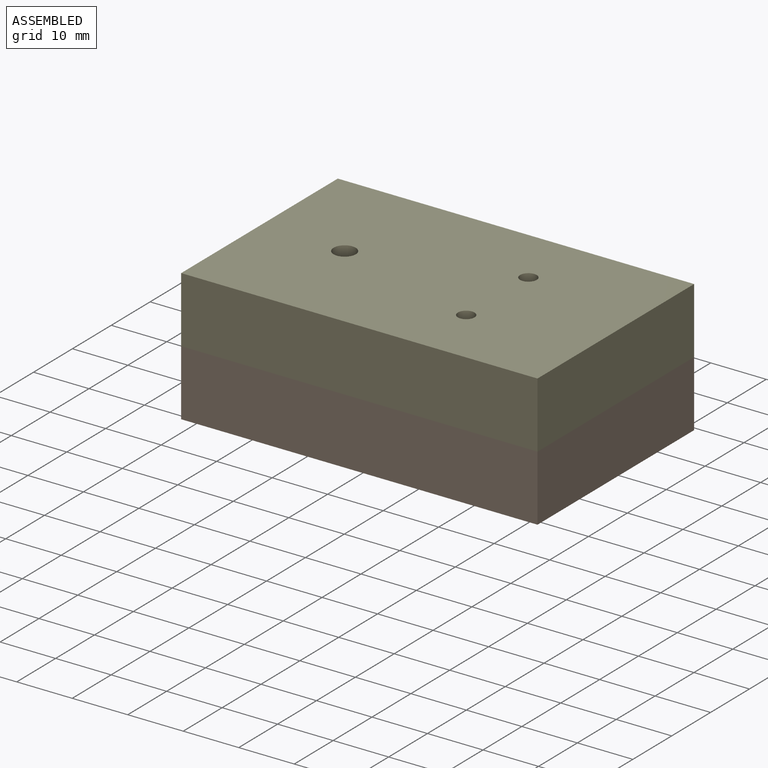
[diagram: assembled view]
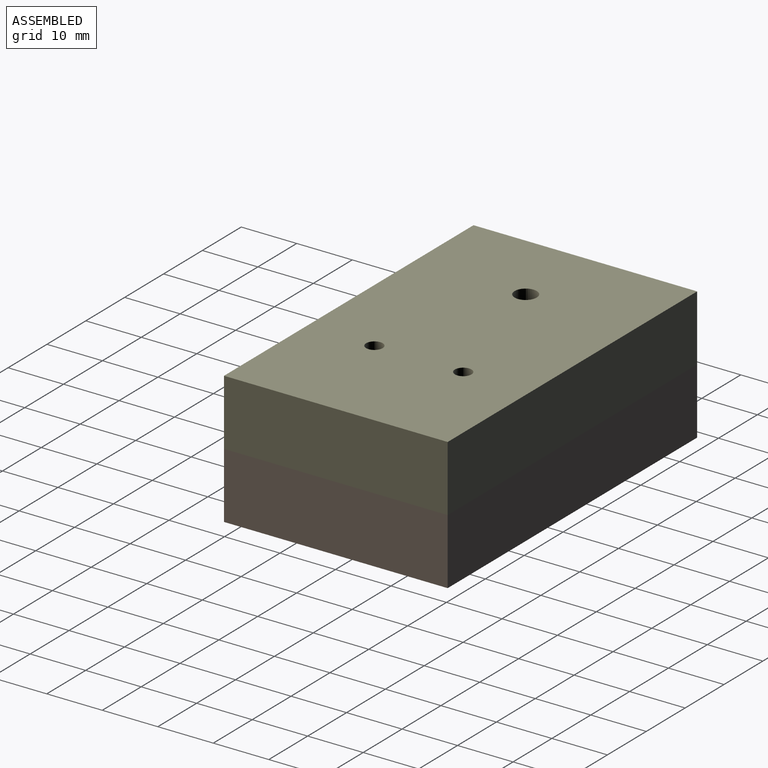
[diagram: assembled view, second angle]
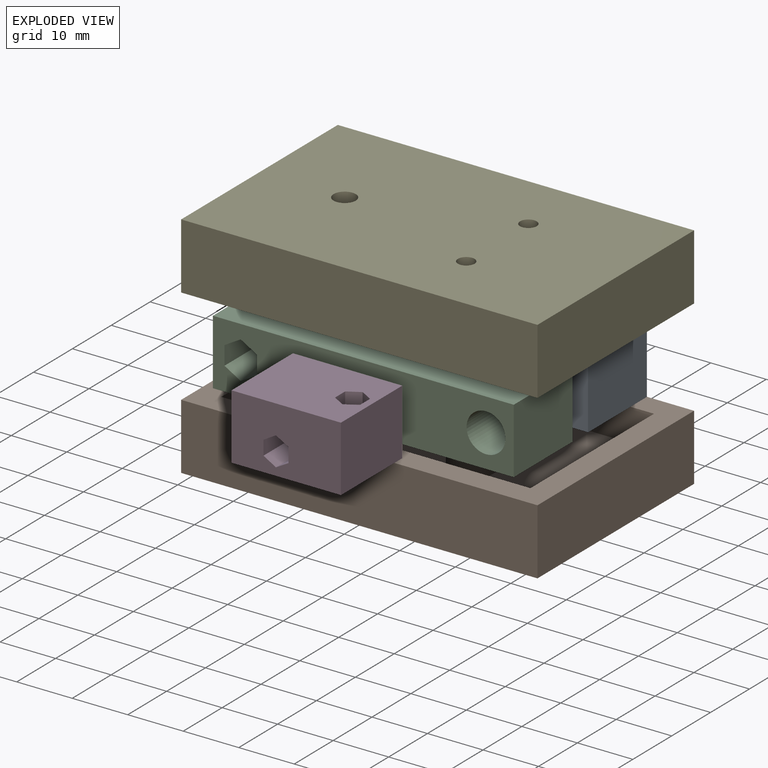
[diagram: exploded view]
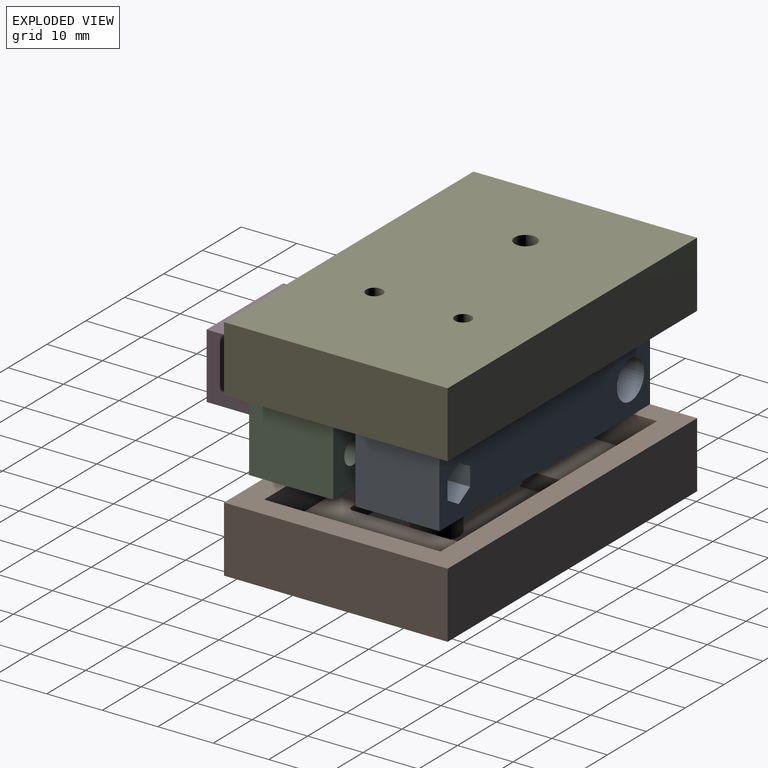
[diagram: exploded view, second angle]
ASSEMBLY  parts=5 mates=8
PART A: 39 faces, bbox 54.2x15.2x11.8 mm
  f0: plane 11.8x8.4mm, normal (0,-1,0), area 84.9mm2, adj f1,f4,f11,f12,f38
  f1: cylinder r=2.12mm len=5.78mm, axis (0,-1,0), area 77.1mm2, adj f0,f29
  f2: cylinder r=2.12mm len=6.36mm, axis (0,-1,0), area 83.6mm2, adj f9,f30,f31,f32,f33,f34,f35
  f3: plane 54.2x11.8mm, normal (0,1,0), area 571.6mm2, adj f4,f10,f11,f12,f22,f23,f24,f25
  f4: plane 15.15x11.8mm, normal (-1,0,0), area 178.8mm2, adj f0,f3,f11,f12
  f5: plane 11.8x1.6mm, normal (0,-1,0), area 18.9mm2, adj f6,f11,f12,f38
  f6: plane 11.8x10.15mm, normal (1,0,0), area 119.8mm2, adj f5,f11,f12,f36
  f7: plane 24.2x11.8mm, normal (0,-1,0), area 257.3mm2, adj f11,f12,f13,f36,f37
  f8: plane 11.8x10.15mm, normal (-1,0,0), area 119.8mm2, adj f9,f11,f12,f37
  f9: plane 14x11.8mm, normal (0,-1,0), area 151mm2, adj f2,f8,f10,f11,f12
  f10: plane 15.15x11.8mm, normal (1,0,0), area 178.8mm2, adj f3,f9,f11,f12
  f11: plane 54.2x15.15mm, normal (0,0,1), area 523.1mm2, adj f0,f3,f4,f5,f6,f7,f8,f9
  f12: plane 54.2x15.15mm, normal (0,0,-1), area 523.1mm2, adj f0,f3,f4,f5,f6,f7,f8,f9
  f13: cylinder r=3mm len=6mm, axis (0,1,0), area 61.3mm2, adj f7,f14
  f14: plane 6x6mm, normal (0,-1,0), area 14.4mm2, adj f13,f15,f16,f17,f18,f19,f20
  f15: plane 3x2mm, normal (0.5,0,-0.87), area 6.9mm2, adj f14,f16,f20,f21
  f16: plane 3x2.31mm, normal (1,0,0), area 6.9mm2, adj f14,f15,f17,f21
  f17: plane 3x2mm, normal (0.5,0,0.87), area 6.9mm2, adj f14,f16,f18,f21
  f18: plane 3x2mm, normal (-0.5,0,0.87), area 6.9mm2, adj f14,f17,f19,f21
  f19: plane 3x2.31mm, normal (-1,0,0), area 6.9mm2, adj f14,f18,f20,f21
  f20: plane 3x2mm, normal (-0.5,0,-0.87), area 6.9mm2, adj f14,f15,f19,f21
  f21: plane 4.62x4mm, normal (0,-1,0), area 13.9mm2, adj f15,f16,f17,f18,f19,f20
  f22: plane 8x2.92mm, normal (0.5,0,0.87), area 27mm2, adj f3,f23,f27,f35
  f23: plane 8x3.37mm, normal (1,0,0), area 27mm2, adj f3,f22,f24,f34
  f24: plane 8x2.92mm, normal (0.5,0,-0.87), area 27mm2, adj f3,f23,f25,f32
  f25: plane 8x2.92mm, normal (-0.5,0,-0.87), area 27mm2, adj f3,f24,f26,f30
  f26: plane 8x3.37mm, normal (-1,0,0), area 27mm2, adj f3,f25,f27,f31
  f27: plane 8x2.92mm, normal (-0.5,0,0.87), area 27mm2, adj f3,f22,f26,f33
  f28: cylinder r=3.5mm len=8mm, axis (0,1,0), area 175.9mm2, adj f3,f29
  f29: cone r=1.5mm half-angle=45deg, axis (0,1,0), area 34.4mm2, adj f1,f28
  f30: plane 2.92x2.31mm, normal (-0.35,0.71,-0.61), area 3.6mm2, adj f2,f25,f31,f32
  f31: plane 3.37x1.08mm, normal (-0.71,0.71,0), area 3.6mm2, adj f2,f26,f30,f33
  f32: plane 2.92x2.31mm, normal (0.35,0.71,-0.61), area 3.6mm2, adj f2,f24,f30,f34
  f33: plane 2.92x2.31mm, normal (-0.35,0.71,0.61), area 3.6mm2, adj f2,f27,f31,f35
  f34: plane 3.37x1.08mm, normal (0.71,0.71,0), area 3.6mm2, adj f2,f23,f32,f35
  f35: plane 2.92x2.31mm, normal (0.35,0.71,0.61), area 3.6mm2, adj f2,f22,f33,f34
  f36: cylinder r=1mm len=11.8mm, axis (0,0,1), area 18.5mm2, adj f6,f7,f11,f12
  f37: cylinder r=1mm len=11.8mm, axis (0,0,-1), area 18.5mm2, adj f7,f8,f11,f12
  f38: cylinder r=2mm len=11.8mm, axis (0,0,1), area 74.1mm2, adj f0,f5,f11,f12
PART B: 40 faces, bbox 64.3x40.4x12 mm
  f0: cylinder r=2mm len=3mm, axis (1,0,0), area 6.5mm2, adj f1,f3,f31,f35,f37,f38
  f1: plane 8.89x3.07mm, normal (1,0,0), area 25.1mm2, adj f0,f3,f4,f18,f38
  f2: plane 8.89x3.07mm, normal (1,0,0), area 25.1mm2, adj f3,f4,f19,f34,f38
  f3: plane 55.7x31.8mm, normal (0,0,1), area 1168.4mm2, adj f0,f1,f2,f5,f6,f7,f17,f18
  f4: plane 26.3x22.3mm, normal (0,0,1), area 535.4mm2, adj f1,f2,f5,f6,f7,f9,f17,f18
  f5: plane 20.3x3mm, normal (-1,0,0), area 60.9mm2, adj f3,f4,f17,f20
  f6: plane 24.3x3mm, normal (0,-1,0), area 72.9mm2, adj f3,f4,f17,f18
  f7: plane 24.3x3mm, normal (0,1,0), area 72.9mm2, adj f3,f4,f19,f20
  f8: plane 8x8mm, normal (0,0,1), area 36.4mm2, adj f9,f11,f12,f13,f14,f15,f16
  f9: cylinder r=4mm len=8mm, axis (0,0,-1), area 75.4mm2, adj f4,f8
  f10: plane 4.62x4mm, normal (0,0,1), area 13.9mm2, adj f11,f12,f13,f14,f15,f16
  f11: plane 3x2mm, normal (0.5,-0.87,0), area 6.9mm2, adj f8,f10,f12,f16
  f12: plane 3x2mm, normal (-0.5,-0.87,0), area 6.9mm2, adj f8,f10,f11,f13
  f13: plane 3x2.31mm, normal (-1,0,0), area 6.9mm2, adj f8,f10,f12,f14
  f14: plane 3x2mm, normal (-0.5,0.87,0), area 6.9mm2, adj f8,f10,f13,f15
  f15: plane 3x2mm, normal (0.5,0.87,0), area 6.9mm2, adj f8,f10,f14,f16
  f16: plane 3x2.31mm, normal (1,0,0), area 6.9mm2, adj f8,f10,f11,f15
  f17: cylinder r=1mm len=3mm, axis (0,0,1), area 4.7mm2, adj f3,f4,f5,f6
  f18: cylinder r=1mm len=3mm, axis (0,0,-1), area 4.7mm2, adj f1,f3,f4,f6
  f19: cylinder r=1mm len=3mm, axis (0,0,1), area 4.7mm2, adj f2,f3,f4,f7
  f20: cylinder r=1mm len=3mm, axis (0,0,-1), area 4.7mm2, adj f3,f4,f5,f7
  f21: plane 55.7x5.9mm, normal (0,-1,0), area 328.6mm2, adj f3,f22,f24,f25
  f22: plane 31.8x5.9mm, normal (-1,0,0), area 187.6mm2, adj f3,f21,f23,f25
  f23: plane 55.7x5.9mm, normal (0,1,0), area 328.6mm2, adj f3,f22,f24,f25
  f24: plane 31.8x5.9mm, normal (1,0,0), area 187.6mm2, adj f3,f21,f23,f25
  f25: plane 64.2x40.3mm, normal (0,0,1), area 816mm2, adj f21,f22,f23,f24,f27,f28,f29,f30
  f26: plane 64.2x40.3mm, normal (0,0,-1), area 2587.3mm2, adj f27,f28,f29,f30
  f27: plane 64.2x11.9mm, normal (0,-1,0), area 764mm2, adj f25,f26,f28,f30
  f28: plane 40.3x11.9mm, normal (-1,0,0), area 479.6mm2, adj f25,f26,f27,f29
  f29: plane 64.2x11.9mm, normal (0,1,0), area 764mm2, adj f25,f26,f28,f30
  f30: plane 40.3x11.9mm, normal (1,0,0), area 479.6mm2, adj f25,f26,f27,f29
  f31: cylinder r=2mm len=4mm, axis (0,0,1), area 31mm2, adj f0,f3,f32,f34,f35,f36,f37,f39
  f32: plane 4x4mm, normal (0,0,1), area 12.6mm2, adj f31,f38
  f33: plane 2.7x0.54mm, normal (-1,0,0), area 1mm2, adj f4,f38
  f34: cylinder r=2mm len=3mm, axis (1,0,0), area 6.5mm2, adj f2,f3,f31,f36,f38,f39
  f35: plane 2.7x0.09mm, normal (1,0,0), area 0.1mm2, adj f0,f31,f37
  f36: plane 2.7x0.09mm, normal (1,0,0), area 0.1mm2, adj f31,f34,f39
  f37: bspline ~3.27x3.27mm, area 2.3mm2, adj f0,f31,f35,f38
  f38: bspline ~3.81x3.67mm, area 10.4mm2, adj f0,f1,f2,f32,f33,f34,f37,f39
  f39: bspline ~3.27x3.27mm, area 2.3mm2, adj f31,f34,f36,f38
PART C: 42 faces, bbox 54.2x15.2x11.8 mm
  f0: plane 11.8x8.4mm, normal (0,-1,0), area 84.9mm2, adj f2,f10,f11,f12,f41
  f1: cylinder r=2.12mm len=5.78mm, axis (0,-1,0), area 77.1mm2, adj f5,f32
  f2: cylinder r=2.12mm len=6.36mm, axis (0,-1,0), area 83.6mm2, adj f0,f33,f34,f35,f36,f37,f38
  f3: plane 54.2x11.8mm, normal (0,1,0), area 571.6mm2, adj f4,f10,f11,f12,f25,f26,f27,f28
  f4: plane 15.15x11.8mm, normal (-1,0,0), area 178.8mm2, adj f3,f5,f11,f12
  f5: plane 14x11.8mm, normal (0,-1,0), area 151mm2, adj f1,f4,f6,f11,f12
  f6: plane 11.8x10.15mm, normal (1,0,0), area 119.8mm2, adj f5,f11,f12,f39
  f7: plane 24.2x11.8mm, normal (0,-1,0), area 224.9mm2, adj f11,f12,f13,f15,f16,f39,f40
  f8: plane 11.8x10.15mm, normal (-1,0,0), area 119.8mm2, adj f9,f11,f12,f40
  f9: plane 11.8x1.6mm, normal (0,-1,0), area 18.9mm2, adj f8,f11,f12,f41
  f10: plane 15.15x11.8mm, normal (1,0,0), area 178.8mm2, adj f0,f3,f11,f12
  f11: plane 54.2x15.15mm, normal (0,0,1), area 523.1mm2, adj f0,f3,f4,f5,f6,f7,f8,f9
  f12: plane 54.2x15.15mm, normal (0,0,-1), area 523.1mm2, adj f0,f3,f4,f5,f6,f7,f8,f9
  f13: cylinder r=3mm len=6mm, axis (0,1,0), area 61.3mm2, adj f7,f14
  f14: plane 6x6mm, normal (0,-1,0), area 14.4mm2, adj f13,f18,f19,f20,f21,f22,f23
  f15: cylinder r=1.25mm len=3.25mm, axis (0,1,0), area 18.3mm2, adj f7,f16,f17
  f16: cylinder r=3mm len=6mm, axis (0,1,0), area 54.8mm2, adj f7,f15,f17
  f17: plane 7.3x6.2mm, normal (0,-1,0), area 32.3mm2, adj f15,f16
  f18: plane 3x2mm, normal (-0.5,0,0.87), area 6.9mm2, adj f14,f19,f23,f24
  f19: plane 3x2.31mm, normal (-1,0,0), area 6.9mm2, adj f14,f18,f20,f24
  f20: plane 3x2mm, normal (-0.5,0,-0.87), area 6.9mm2, adj f14,f19,f21,f24
  f21: plane 3x2mm, normal (0.5,0,-0.87), area 6.9mm2, adj f14,f20,f22,f24
  f22: plane 3x2.31mm, normal (1,0,0), area 6.9mm2, adj f14,f21,f23,f24
  f23: plane 3x2mm, normal (0.5,0,0.87), area 6.9mm2, adj f14,f18,f22,f24
  f24: plane 4.62x4mm, normal (0,-1,0), area 13.9mm2, adj f18,f19,f20,f21,f22,f23
  f25: plane 8x2.92mm, normal (0.5,0,0.87), area 27mm2, adj f3,f26,f30,f38
  f26: plane 8x3.37mm, normal (1,0,0), area 27mm2, adj f3,f25,f27,f37
  f27: plane 8x2.92mm, normal (0.5,0,-0.87), area 27mm2, adj f3,f26,f28,f35
  f28: plane 8x2.92mm, normal (-0.5,0,-0.87), area 27mm2, adj f3,f27,f29,f33
  f29: plane 8x3.37mm, normal (-1,0,0), area 27mm2, adj f3,f28,f30,f34
  f30: plane 8x2.92mm, normal (-0.5,0,0.87), area 27mm2, adj f3,f25,f29,f36
  f31: cylinder r=3.5mm len=8mm, axis (0,1,0), area 175.9mm2, adj f3,f32
  f32: cone r=1.5mm half-angle=45deg, axis (0,1,0), area 34.4mm2, adj f1,f31
  f33: plane 2.92x2.31mm, normal (-0.35,0.71,-0.61), area 3.6mm2, adj f2,f28,f34,f35
  f34: plane 3.37x1.08mm, normal (-0.71,0.71,0), area 3.6mm2, adj f2,f29,f33,f36
  f35: plane 2.92x2.31mm, normal (0.35,0.71,-0.61), area 3.6mm2, adj f2,f27,f33,f37
  f36: plane 2.92x2.31mm, normal (-0.35,0.71,0.61), area 3.6mm2, adj f2,f30,f34,f38
  f37: plane 3.37x1.08mm, normal (0.71,0.71,0), area 3.6mm2, adj f2,f26,f35,f38
  f38: plane 2.92x2.31mm, normal (0.35,0.71,0.61), area 3.6mm2, adj f2,f25,f36,f37
  f39: cylinder r=1mm len=11.8mm, axis (0,0,1), area 18.5mm2, adj f6,f7,f11,f12
  f40: cylinder r=1mm len=11.8mm, axis (0,0,-1), area 18.5mm2, adj f7,f8,f11,f12
  f41: cylinder r=2mm len=11.8mm, axis (0,0,1), area 74.1mm2, adj f0,f9,f11,f12
PART D: 29 faces, bbox 19.7x15.8x13.8 mm
  f0: plane 5.9x2.25mm, normal (-0.5,0,0.87), area 15.3mm2, adj f1,f5,f6,f20
  f1: plane 5.9x2.6mm, normal (-1,0,0), area 15.3mm2, adj f0,f2,f6,f20
  f2: plane 5.9x2.25mm, normal (-0.5,0,-0.87), area 15.3mm2, adj f1,f3,f6,f20
  f3: plane 5.9x2.25mm, normal (0.5,0,-0.87), area 15.3mm2, adj f2,f4,f6,f20
  f4: plane 5.9x2.6mm, normal (1,0,0), area 15.3mm2, adj f3,f5,f6,f20
  f5: plane 5.9x2.25mm, normal (0.5,0,0.87), area 15.3mm2, adj f0,f4,f6,f20
  f6: plane 19.7x11.8mm, normal (0,1,0), area 214.9mm2, adj f0,f1,f2,f3,f4,f5,f8,f9
  f7: plane 19.7x11.8mm, normal (0,-1,0), area 214.9mm2, adj f8,f9,f10,f11,f12,f13,f14,f15
  f8: plane 15.8x11.8mm, normal (1,0,0), area 186.4mm2, adj f6,f7,f10,f11
  f9: plane 15.8x11.8mm, normal (-1,0,0), area 186.4mm2, adj f6,f7,f10,f11
  f10: plane 19.7x15.8mm, normal (0,0,1), area 293.7mm2, adj f6,f7,f8,f9,f21,f22,f23,f24
  f11: plane 19.7x15.8mm, normal (0,0,-1), area 265.4mm2, adj f6,f7,f8,f9,f21,f22,f23,f24
  f12: plane 5.9x2.25mm, normal (-0.5,0,0.87), area 15.3mm2, adj f7,f13,f17,f19
  f13: plane 5.9x2.6mm, normal (-1,0,0), area 15.3mm2, adj f7,f12,f14,f19
  f14: plane 5.9x2.25mm, normal (-0.5,0,-0.87), area 15.3mm2, adj f7,f13,f15,f19
  f15: plane 5.9x2.25mm, normal (0.5,0,-0.87), area 15.3mm2, adj f7,f14,f16,f19
  f16: plane 5.9x2.6mm, normal (1,0,0), area 15.3mm2, adj f7,f15,f17,f19
  f17: plane 5.9x2.25mm, normal (0.5,0,0.87), area 15.3mm2, adj f7,f12,f16,f19
  f18: cylinder r=1.5mm len=4mm, axis (0,1,0), area 37.7mm2, adj f19,f20
  f19: plane 5.2x4.5mm, normal (0,-1,0), area 10.5mm2, adj f12,f13,f14,f15,f16,f17,f18
  f20: plane 5.2x4.5mm, normal (0,1,0), area 10.5mm2, adj f0,f1,f2,f3,f4,f5,f18
  f21: plane 11.8x2.25mm, normal (-0.5,0.87,0), area 30.7mm2, adj f10,f11,f22,f26
  f22: plane 11.8x2.6mm, normal (-1,0,0), area 30.7mm2, adj f10,f11,f21,f23
  f23: plane 11.8x2.25mm, normal (-0.5,-0.87,0), area 30.7mm2, adj f10,f11,f22,f24
  f24: plane 11.8x2.25mm, normal (0.5,-0.87,0), area 30.7mm2, adj f10,f11,f23,f25
  f25: plane 11.8x2.6mm, normal (1,0,0), area 30.7mm2, adj f10,f11,f24,f26
  f26: plane 11.8x2.25mm, normal (0.5,0.87,0), area 30.7mm2, adj f10,f11,f21,f25
  f27: sphere r=3mm, area 37.7mm2, adj f11,f28
  f28: plane 4.47x4.47mm, normal (0,0,-1), area 15.7mm2, adj f27
PART E: 37 faces, bbox 64.2x40.3x11.9 mm
  f0: plane 26.3x22.3mm, normal (0,0,1), area 360.1mm2, adj f3,f4,f5,f6,f8,f16,f17,f18
  f1: plane 64.2x40.3mm, normal (0,0,-1), area 2560.6mm2, adj f25,f26,f27,f28,f34,f35,f36
  f2: plane 55.7x31.8mm, normal (0,0,1), area 1173.1mm2, adj f3,f4,f5,f6,f16,f17,f18,f19
  f3: plane 20.3x3mm, normal (-1,0,0), area 60.9mm2, adj f0,f2,f16,f19
  f4: plane 24.3x3mm, normal (0,-1,0), area 72.9mm2, adj f0,f2,f16,f17
  f5: plane 20.3x3mm, normal (1,0,0), area 60.9mm2, adj f0,f2,f17,f18
  f6: plane 24.3x3mm, normal (0,1,0), area 72.9mm2, adj f0,f2,f18,f19
  f7: plane 18.45x12.3mm, normal (0,0,1), area 197.5mm2, adj f8,f10,f11,f12,f13,f14,f15,f29
  f8: cylinder r=4mm len=7.09mm, axis (0,0,-1), area 26.2mm2, adj f0,f7,f29,f30
  f9: plane 4.62x4mm, normal (0,0,1), area 13.9mm2, adj f10,f11,f12,f13,f14,f15
  f10: plane 3x2mm, normal (0.5,-0.87,0), area 6.9mm2, adj f7,f9,f11,f15
  f11: plane 3x2mm, normal (-0.5,-0.87,0), area 6.9mm2, adj f7,f9,f10,f12
  f12: plane 3x2.31mm, normal (-1,0,0), area 6.9mm2, adj f7,f9,f11,f13
  f13: plane 3x2mm, normal (-0.5,0.87,0), area 6.9mm2, adj f7,f9,f12,f14
  f14: plane 3x2mm, normal (0.5,0.87,0), area 6.9mm2, adj f7,f9,f13,f15
  f15: plane 3x2.31mm, normal (1,0,0), area 6.9mm2, adj f7,f9,f10,f14
  f16: cylinder r=1mm len=3mm, axis (0,0,1), area 4.7mm2, adj f0,f2,f3,f4
  f17: cylinder r=1mm len=3mm, axis (0,0,-1), area 4.7mm2, adj f0,f2,f4,f5
  f18: cylinder r=1mm len=3mm, axis (0,0,1), area 4.7mm2, adj f0,f2,f5,f6
  f19: cylinder r=1mm len=3mm, axis (0,0,-1), area 4.7mm2, adj f0,f2,f3,f6
  f20: plane 55.7x5.9mm, normal (0,-1,0), area 328.6mm2, adj f2,f21,f23,f24
  f21: plane 31.8x5.9mm, normal (-1,0,0), area 187.6mm2, adj f2,f20,f22,f24
  f22: plane 55.7x5.9mm, normal (0,1,0), area 328.6mm2, adj f2,f21,f23,f24
  f23: plane 31.8x5.9mm, normal (1,0,0), area 187.6mm2, adj f2,f20,f22,f24
  f24: plane 64.2x40.3mm, normal (0,0,1), area 816mm2, adj f20,f21,f22,f23,f25,f26,f27,f28
  f25: plane 64.2x11.9mm, normal (0,-1,0), area 764mm2, adj f1,f24,f26,f28
  f26: plane 40.3x11.9mm, normal (-1,0,0), area 479.6mm2, adj f1,f24,f25,f27
  f27: plane 64.2x11.9mm, normal (0,1,0), area 764mm2, adj f1,f24,f26,f28
  f28: plane 40.3x11.9mm, normal (1,0,0), area 479.6mm2, adj f1,f24,f25,f27
  f29: plane 3x2.7mm, normal (1,0,0), area 8.1mm2, adj f0,f7,f8,f33
  f30: plane 3x2.5mm, normal (1,0,0), area 7.5mm2, adj f0,f7,f8,f31
  f31: plane 16.3x3mm, normal (0,1,0), area 48.9mm2, adj f0,f7,f30,f32
  f32: plane 12.3x3mm, normal (-1,0,0), area 36.9mm2, adj f0,f7,f31,f33
  f33: plane 16.3x3mm, normal (0,-1,0), area 48.9mm2, adj f0,f7,f29,f32
  f34: cylinder r=1.5mm len=3mm, axis (0,0,1), area 28.3mm2, adj f0,f1
  f35: cylinder r=1.5mm len=3mm, axis (0,0,1), area 28.3mm2, adj f0,f1
  f36: cylinder r=2mm len=6mm, axis (0,0,1), area 75.4mm2, adj f1,f2
PLACE A t=(2.57,0.35,-1.71)mm fixed
PLACE B t=(2.57,0.35,-13.61)mm fixed
PLACE C rot(axis=(0,0,1),180deg) t=(2.57,0.35,-1.71)mm
PLACE D t=(2.52,0.35,-1.71)mm
PLACE E rot(axis=(1,0,0),180deg) t=(2.57,0.35,10.19)mm
MATE planar A.f13 <-> D.f6  axis (0,-1,0) through (0.67,8.25,-3.61)mm
MATE planar D.f11 <-> A.f12  axis (0,0,-1) through (2.73,0.34,-7.61)mm
MATE planar C.f5 <-> A.f5  axis (0,1,0) through (22.49,0.35,-1.71)mm
MATE planar E.f28 <-> B.f30  axis (1,0,0) through (34.67,0.35,4.24)mm
MATE planar C.f12 <-> B.f3  axis (0,0,-1) through (-24.53,-7.23,-7.61)mm
MATE planar D.f10 <-> E.f7  axis (0,0,1) through (-7.33,0.35,4.19)mm
MATE cylindrical A.f13 <-> D.f18  axis (0,1,0) through (0.67,8.25,-3.61)mm
MATE planar A.f11 <-> C.f11  axis (0,0,1) through (-10.53,10.5,4.19)mm
